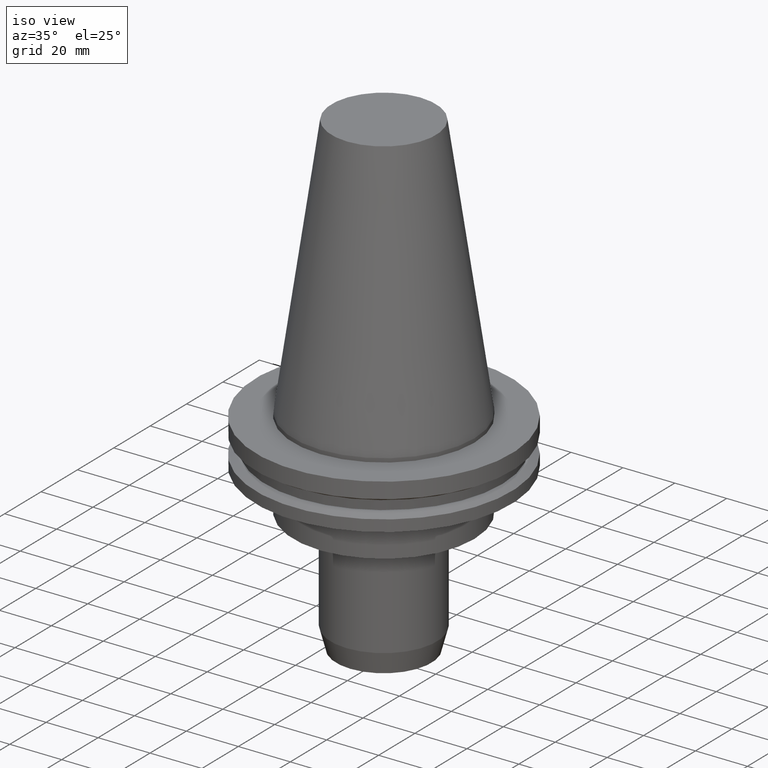
[diagram: clean part render]
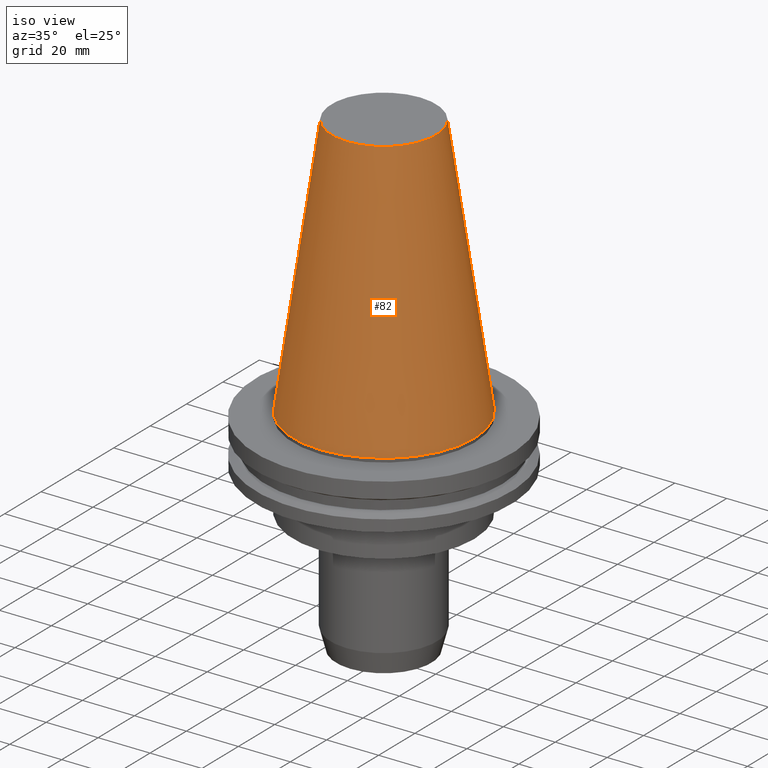
[diagram: tour spotlight — one face highlighted and labeled with its STEP entity id]
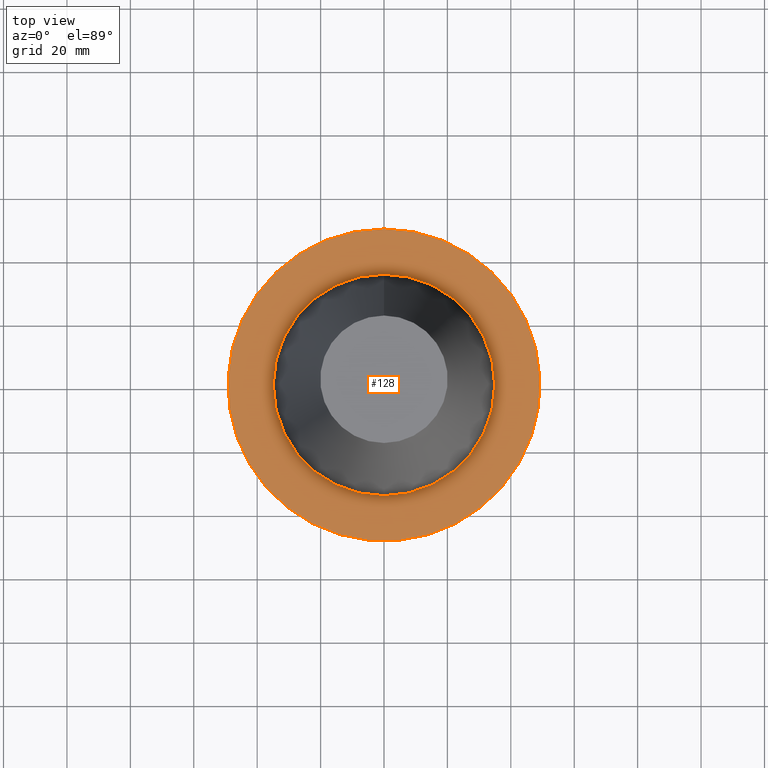
[diagram: tour spotlight — one face highlighted and labeled with its STEP entity id]
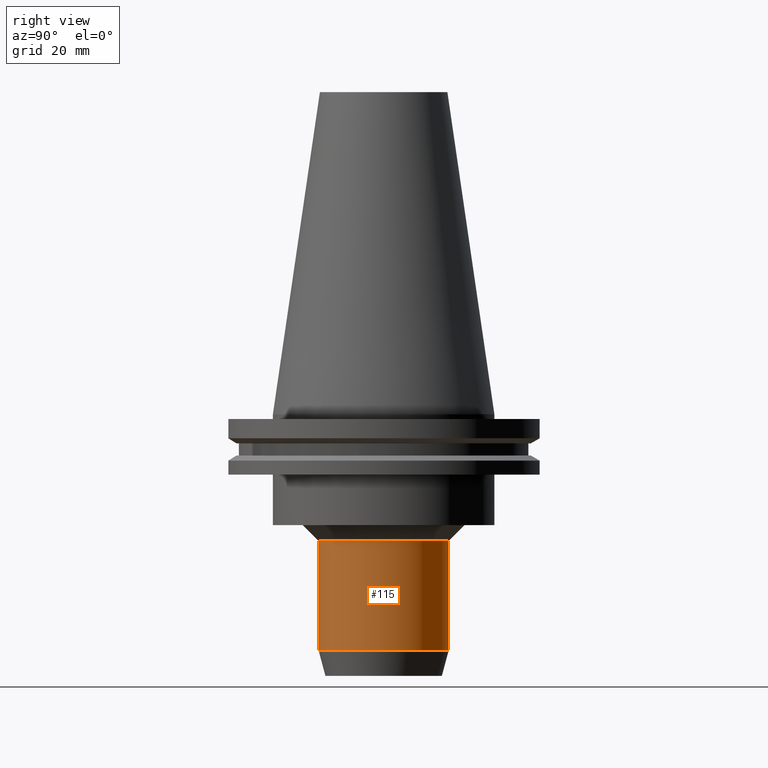
[diagram: tour spotlight — one face highlighted and labeled with its STEP entity id]
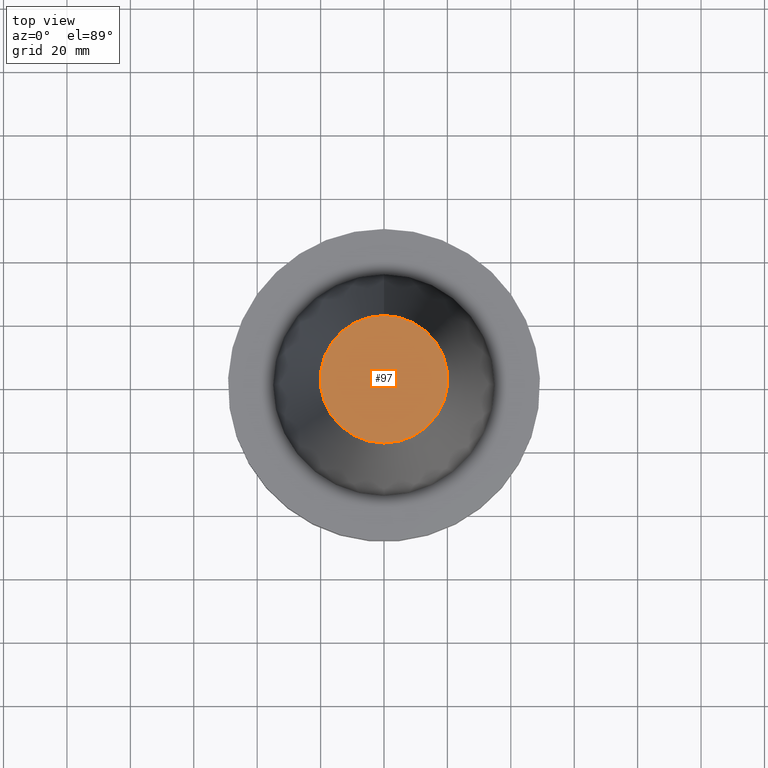
[diagram: tour spotlight — one face highlighted and labeled with its STEP entity id]
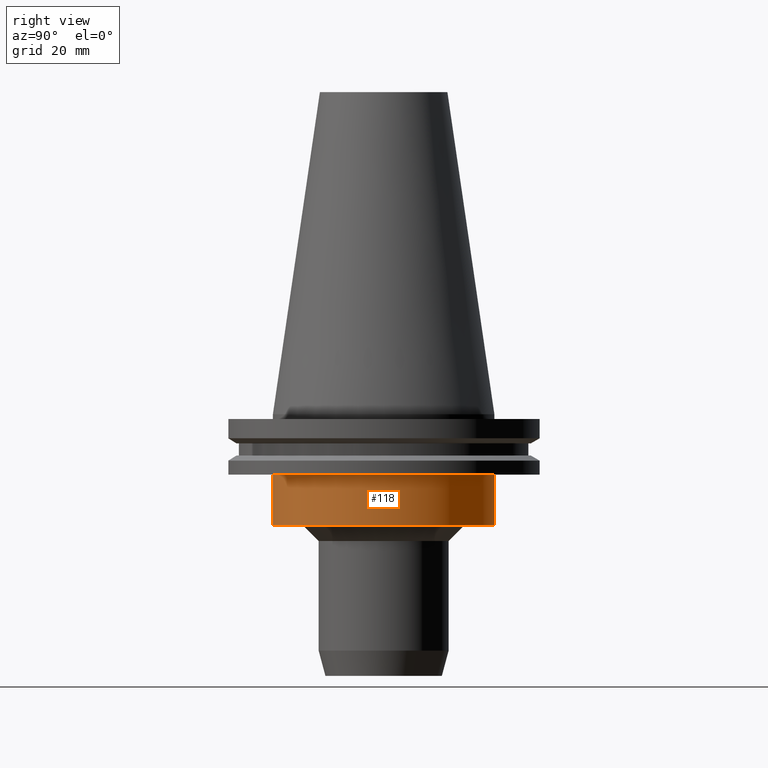
[diagram: tour spotlight — one face highlighted and labeled with its STEP entity id]
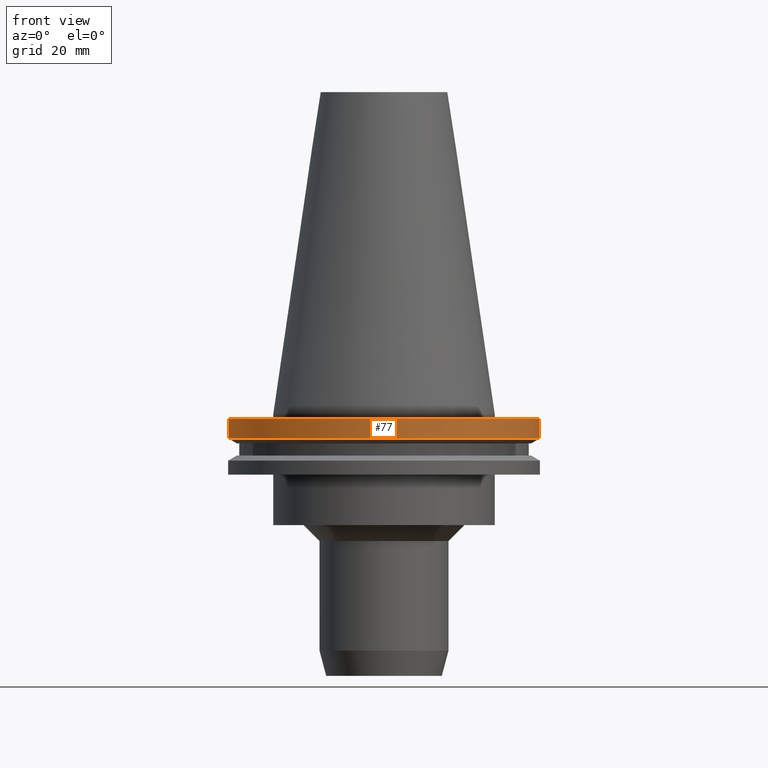
[diagram: tour spotlight — one face highlighted and labeled with its STEP entity id]
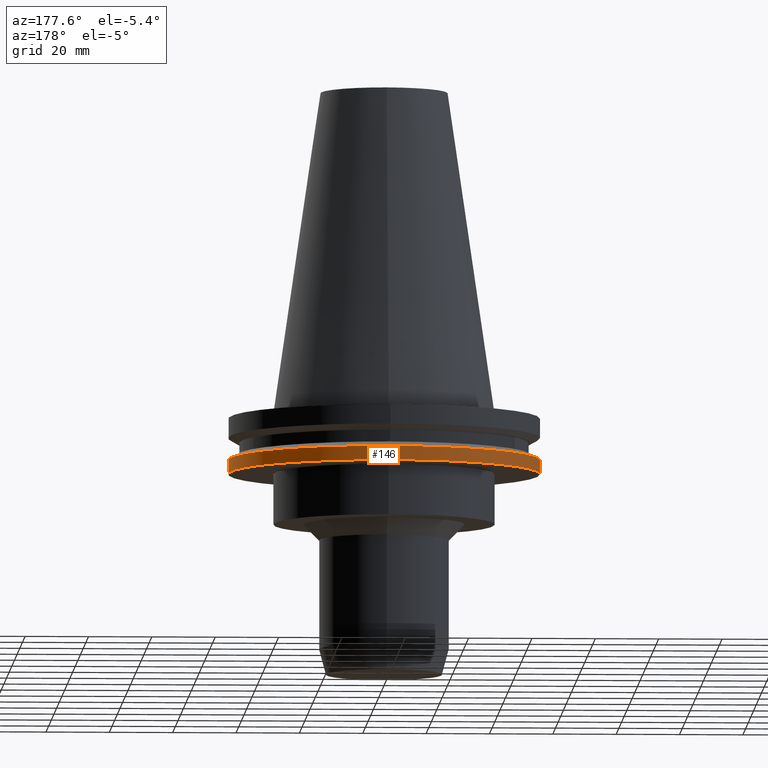
[diagram: tour spotlight — one face highlighted and labeled with its STEP entity id]
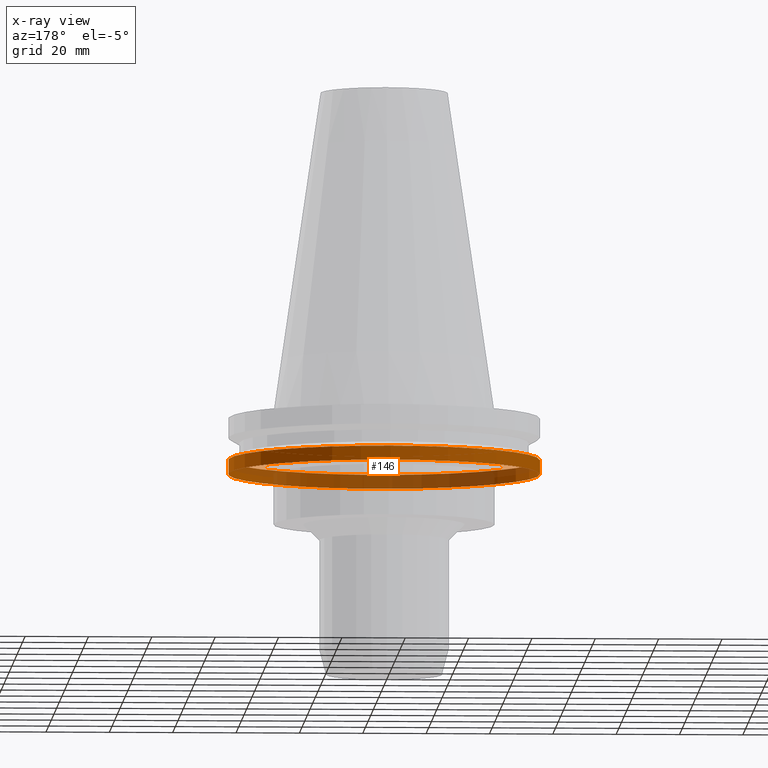
[diagram: x-ray of the same camera — body ghosted, this tour face saturated]
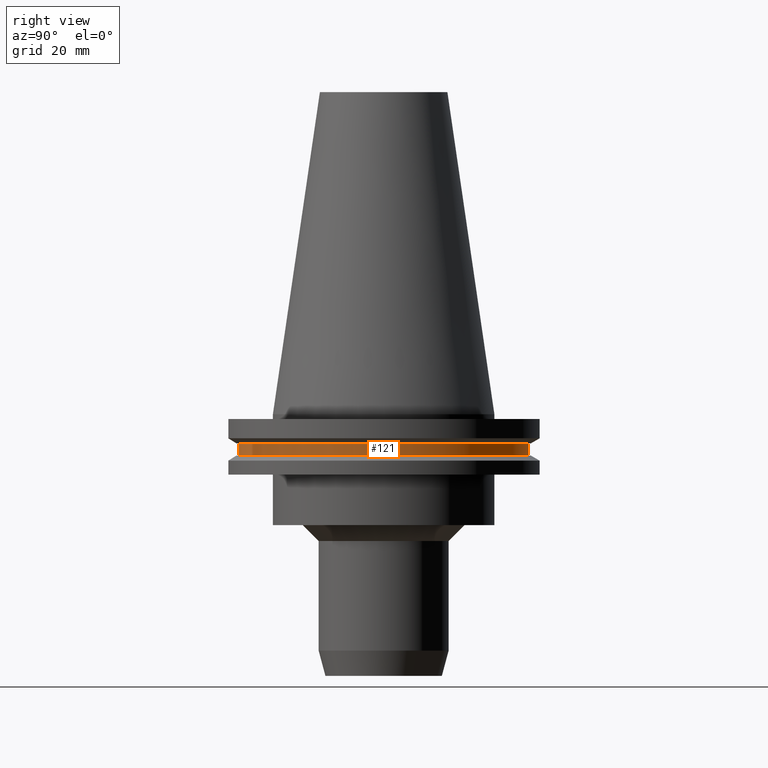
[diagram: tour spotlight — one face highlighted and labeled with its STEP entity id]
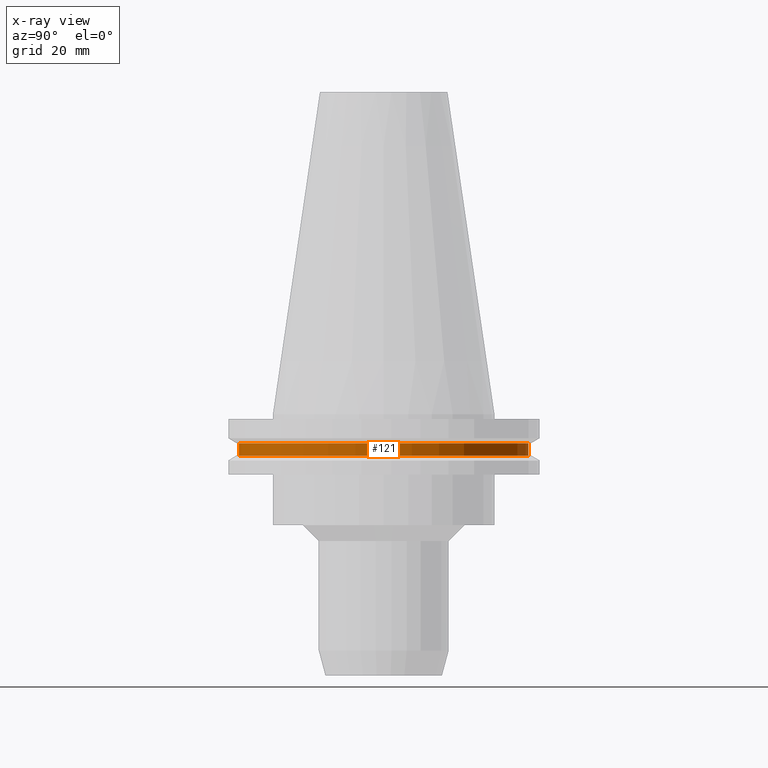
[diagram: x-ray of the same camera — body ghosted, this tour face saturated]
A machine part: a face-by-face anatomy tour. The part has 18 B-rep faces; the first image is the clean iso view, then the 8 largest visible faces are spotlighted one at a time (largest first), each with its STEP entity span.

Face 1 — iso view, entity #82. In plain terms, the highlighted conical surface has half-angle 8.297 deg.
Definition (entity closure, byte-faithful):
#65=EDGE_CURVE('Unnamed[1]',#175,#175,#176,.T.);
#79=EDGE_CURVE('Unnamed[1]',#196,#196,#197,.T.);
#82=ADVANCED_FACE('Unnamed[1]',(#200,#201),#202,.T.);
#175=VERTEX_POINT('',#326);
#176=CIRCLE('',#327,34.925);
#196=VERTEX_POINT('',#353);
#197=CIRCLE('',#354,20.1083333333333);
#200=FACE_BOUND('',#358,.T.);
#201=FACE_BOUND('',#359,.T.);
#202=CONICAL_SURFACE('',#360,27.5166666666666,0.144812498238938);
#326=CARTESIAN_POINT('',(4.82986938111671E-029,34.925,-7.9153078510529E-013));
#327=AXIS2_PLACEMENT_3D('',#501,#502,#503);
#353=CARTESIAN_POINT('',(-6.22120573966855E-015,20.1083333333332,101.6));
#354=AXIS2_PLACEMENT_3D('',#524,#525,#526);
#358=EDGE_LOOP('',(#528));
#359=EDGE_LOOP('',(#529));
#360=AXIS2_PLACEMENT_3D('',#530,#531,#532);
#501=CARTESIAN_POINT('',(4.95993415593426E-029,6.40020863429802E-015,-8.10018718766514E-013));
#502=DIRECTION('',(6.12323399573677E-017,7.22462196173144E-016,-1.0));
#503=DIRECTION('',(-4.90652035331952E-032,1.0,7.22462196173144E-016));
#524=CARTESIAN_POINT('',(-6.22120573966855E-015,-6.70019504968894E-014,101.6));
#525=DIRECTION('',(6.12323399573677E-017,7.22462196173083E-016,-1.0));
#526=DIRECTION('',(-4.90652035331843E-032,1.0,7.22462196173083E-016));
#528=ORIENTED_EDGE('',*,*,#65,.F.);
#529=ORIENTED_EDGE('',*,*,#79,.T.);
#530=CARTESIAN_POINT('',(-3.11060286983425E-015,-3.03008709312957E-014,50.7999999999996));
#531=DIRECTION('',(6.12323399573677E-017,7.22462196173063E-016,-1.0));
#532=DIRECTION('',(-4.90652035331879E-032,1.0,7.22462196173063E-016));

Face 2 — top view, entity #128. In plain terms, the highlighted planar face has unit normal (-0, -0, 1).
Definition (entity closure, byte-faithful):
#69=EDGE_CURVE('Unnamed[1]',#181,#181,#182,.T.);
#90=EDGE_CURVE('Unnamed[1]',#214,#214,#215,.T.);
#128=ADVANCED_FACE('Unnamed[1]',(#271,#272),#273,.T.);
#181=VERTEX_POINT('',#334);
#182=CIRCLE('',#335,34.925);
#214=VERTEX_POINT('',#375);
#215=CIRCLE('',#376,49.2124999999999);
#271=FACE_OUTER_BOUND('',#446,.T.);
#272=FACE_BOUND('',#447,.T.);
#273=PLANE('',#448);
#334=CARTESIAN_POINT('',(9.18485099360511E-017,34.925,-1.5));
#335=AXIS2_PLACEMENT_3D('',#507,#508,#509);
#375=CARTESIAN_POINT('',(9.18485099360509E-017,49.2124999999999,-1.49999999999999));
#376=AXIS2_PLACEMENT_3D('',#545,#546,#547);
#446=EDGE_LOOP('',(#606));
#447=EDGE_LOOP('',(#607));
#448=AXIS2_PLACEMENT_3D('',#608,#609,#610);
#507=CARTESIAN_POINT('',(9.18485099360524E-017,7.48390192855709E-015,-1.50000000000001));
#508=DIRECTION('',(6.12323399573677E-017,7.22462196173145E-016,-1.0));
#509=DIRECTION('',(-4.90652035331953E-032,1.0,7.22462196173145E-016));
#545=CARTESIAN_POINT('',(9.18485099360532E-017,7.4839019285571E-015,-1.50000000000003));
#546=DIRECTION('',(6.12323399573677E-017,7.22462196173164E-016,-1.0));
#547=DIRECTION('',(-4.90652035331884E-032,1.0,7.22462196173164E-016));
#606=ORIENTED_EDGE('',*,*,#90,.F.);
#607=ORIENTED_EDGE('',*,*,#69,.T.);
#608=CARTESIAN_POINT('',(9.1848509936051E-017,42.0687499999999,-1.49999999999999));
#609=DIRECTION('',(-6.12323399573677E-017,-1.22464679914735E-016,1.0));
#610=DIRECTION('',(1.23259516440783E-032,-1.0,-1.22464679914735E-016));

Face 3 — right view, entity #115. In plain terms, the highlighted cylindrical surface (bore or boss wall) has radius 20.5 mm, axis along (0, 0, -1).
Definition (entity closure, byte-faithful):
#109=EDGE_CURVE('Unnamed[1]',#243,#243,#244,.T.);
#115=ADVANCED_FACE('Unnamed[1]',(#250,#251),#252,.T.);
#130=EDGE_CURVE('Unnamed[1]',#275,#275,#276,.T.);
#243=VERTEX_POINT('',#412);
#244=CIRCLE('',#413,20.5000000000002);
#250=FACE_BOUND('',#420,.T.);
#251=FACE_BOUND('',#421,.T.);
#252=CYLINDRICAL_SURFACE('',#422,20.4999999999997);
#275=VERTEX_POINT('',#451);
#276=CIRCLE('',#452,20.4999999999992);
#412=CARTESIAN_POINT('',(4.56487094321621E-015,20.5000000000003,-74.5499999901106));
#413=AXIS2_PLACEMENT_3D('',#577,#578,#579);
#420=EDGE_LOOP('',(#582));
#421=EDGE_LOOP('',(#583));
#422=AXIS2_PLACEMENT_3D('',#584,#585,#586);
#451=CARTESIAN_POINT('',(2.44929359829474E-015,20.4999999999993,-40.0000000000006));
#452=AXIS2_PLACEMENT_3D('',#611,#612,#613);
#577=CARTESIAN_POINT('',(4.56487094321621E-015,6.02597653518573E-014,-74.5499999901106));
#578=DIRECTION('',(6.12323399573677E-017,7.22462196173134E-016,-1.0));
#579=DIRECTION('',(-4.90652035331935E-032,1.0,7.22462196173134E-016));
#582=ORIENTED_EDGE('',*,*,#109,.F.);
#583=ORIENTED_EDGE('',*,*,#130,.T.);
#584=CARTESIAN_POINT('',(3.50708227075548E-015,4.77792309165396E-014,-57.2749999950556));
#585=DIRECTION('',(6.12323399573677E-017,7.22462196173072E-016,-1.0));
#586=DIRECTION('',(-4.9065203533186E-032,1.0,7.22462196173072E-016));
#611=CARTESIAN_POINT('',(2.44929359829474E-015,3.52986964812218E-014,-40.0000000000006));
#612=DIRECTION('',(6.12323399573677E-017,7.2246219617309E-016,-1.0));
#613=DIRECTION('',(-4.90652035331871E-032,1.0,7.2246219617309E-016));

Face 4 — top view, entity #97. In plain terms, the highlighted planar face has unit normal (-0, -0, 1).
Definition (entity closure, byte-faithful):
#79=EDGE_CURVE('Unnamed[1]',#196,#196,#197,.T.);
#97=ADVANCED_FACE('Unnamed[1]',(#224),#225,.T.);
#196=VERTEX_POINT('',#353);
#197=CIRCLE('',#354,20.1083333333333);
#224=FACE_OUTER_BOUND('',#388,.T.);
#225=PLANE('',#389);
#353=CARTESIAN_POINT('',(-6.22120573966855E-015,20.1083333333332,101.6));
#354=AXIS2_PLACEMENT_3D('',#524,#525,#526);
#388=EDGE_LOOP('',(#555));
#389=AXIS2_PLACEMENT_3D('',#556,#557,#558);
#524=CARTESIAN_POINT('',(-6.22120573966855E-015,-6.70019504968894E-014,101.6));
#525=DIRECTION('',(6.12323399573677E-017,7.22462196173083E-016,-1.0));
#526=DIRECTION('',(-4.90652035331843E-032,1.0,7.22462196173083E-016));
#555=ORIENTED_EDGE('',*,*,#79,.F.);
#556=CARTESIAN_POINT('',(-6.22120573966855E-015,10.0541666666666,101.6));
#557=DIRECTION('',(-6.12323399573677E-017,-1.22464679914735E-016,1.0));
#558=DIRECTION('',(1.23259516440783E-032,-1.0,-1.22464679914735E-016));

Face 5 — right view, entity #118. In plain terms, the highlighted cylindrical surface (bore or boss wall) has radius 34.925 mm, axis along (0, 0, -1).
Definition (entity closure, byte-faithful):
#118=ADVANCED_FACE('Unnamed[1]',(#255,#256),#257,.T.);
#123=EDGE_CURVE('Unnamed[1]',#264,#264,#265,.T.);
#132=EDGE_CURVE('Unnamed[1]',#278,#278,#279,.T.);
#255=FACE_BOUND('',#426,.T.);
#256=FACE_BOUND('',#427,.T.);
#257=CYLINDRICAL_SURFACE('',#428,34.925);
#264=VERTEX_POINT('',#437);
#265=CIRCLE('',#438,34.925);
#278=VERTEX_POINT('',#455);
#279=CIRCLE('',#456,34.925);
#426=EDGE_LOOP('',(#588));
#427=EDGE_LOOP('',(#589));
#428=AXIS2_PLACEMENT_3D('',#590,#591,#592);
#437=CARTESIAN_POINT('',(2.14313189850787E-015,34.925,-35.0000000000001));
#438=AXIS2_PLACEMENT_3D('',#599,#600,#601);
#455=CARTESIAN_POINT('',(1.16647607618786E-015,34.925,-19.0500000000001));
#456=AXIS2_PLACEMENT_3D('',#614,#615,#616);
#588=ORIENTED_EDGE('',*,*,#123,.F.);
#589=ORIENTED_EDGE('',*,*,#132,.T.);
#590=CARTESIAN_POINT('',(1.65480398734787E-015,2.59247494858755E-014,-27.0250000000001));
#591=DIRECTION('',(6.12323399573677E-017,7.22462196173145E-016,-1.0));
#592=DIRECTION('',(-4.90652035331901E-032,1.0,7.22462196173145E-016));
#599=CARTESIAN_POINT('',(2.14313189850787E-015,3.1686385500356E-014,-35.0000000000001));
#600=DIRECTION('',(6.12323399573677E-017,7.22462196173145E-016,-1.0));
#601=DIRECTION('',(-4.90652035331901E-032,1.0,7.22462196173145E-016));
#614=CARTESIAN_POINT('',(1.16647607618786E-015,2.0163113471395E-014,-19.0500000000001));
#615=DIRECTION('',(6.12323399573677E-017,7.22462196173145E-016,-1.0));
#616=DIRECTION('',(-4.90652035331901E-032,1.0,7.22462196173145E-016));

Face 6 — front view, entity #77. In plain terms, the highlighted cylindrical surface (bore or boss wall) has radius 49.2125 mm, axis along (0, 0, -1).
Definition (entity closure, byte-faithful):
#77=ADVANCED_FACE('Unnamed[1]',(#192,#193),#194,.T.);
#90=EDGE_CURVE('Unnamed[1]',#214,#214,#215,.T.);
#102=EDGE_CURVE('Unnamed[1]',#232,#232,#233,.T.);
#192=FACE_BOUND('',#348,.T.);
#193=FACE_BOUND('',#349,.T.);
#194=CYLINDRICAL_SURFACE('',#350,49.2125);
#214=VERTEX_POINT('',#375);
#215=CIRCLE('',#376,49.2124999999999);
#232=VERTEX_POINT('',#398);
#233=CIRCLE('',#399,49.2125);
#348=EDGE_LOOP('',(#519));
#349=EDGE_LOOP('',(#520));
#350=AXIS2_PLACEMENT_3D('',#521,#522,#523);
#375=CARTESIAN_POINT('',(9.18485099360509E-017,49.2124999999999,-1.49999999999999));
#376=AXIS2_PLACEMENT_3D('',#545,#546,#547);
#398=CARTESIAN_POINT('',(4.65059621976208E-016,49.2125,-7.59500000000002));
#399=AXIS2_PLACEMENT_3D('',#565,#566,#567);
#519=ORIENTED_EDGE('',*,*,#102,.F.);
#520=ORIENTED_EDGE('',*,*,#90,.T.);
#521=CARTESIAN_POINT('',(2.78454065956132E-016,9.68560547139463E-015,-4.54750000000004));
#522=DIRECTION('',(6.12323399573677E-017,7.22462196173163E-016,-1.0));
#523=DIRECTION('',(-4.90652035331883E-032,1.0,7.22462196173163E-016));
#545=CARTESIAN_POINT('',(9.18485099360532E-017,7.4839019285571E-015,-1.50000000000003));
#546=DIRECTION('',(6.12323399573677E-017,7.22462196173164E-016,-1.0));
#547=DIRECTION('',(-4.90652035331884E-032,1.0,7.22462196173164E-016));
#565=CARTESIAN_POINT('',(4.65059621976211E-016,1.18873090142322E-014,-7.59500000000006));
#566=DIRECTION('',(6.12323399573677E-017,7.22462196173162E-016,-1.0));
#567=DIRECTION('',(-4.90652035331882E-032,1.0,7.22462196173162E-016));

Face 7 — auxiliary view, entity #146. An x-ray twin of the same camera follows (body ghosted, this face saturated) — the face is partly hidden behind the body. In plain terms, the highlighted cylindrical surface (bore or boss wall) has radius 49.2125 mm, axis along (0, 0, -1).
Definition (entity closure, byte-faithful):
#71=EDGE_CURVE('Unnamed[1]',#184,#184,#185,.T.);
#107=EDGE_CURVE('Unnamed[1]',#240,#240,#241,.T.);
#146=ADVANCED_FACE('Unnamed[1]',(#300,#301),#302,.T.);
#184=VERTEX_POINT('',#338);
#185=CIRCLE('',#339,49.2124999999999);
#240=VERTEX_POINT('',#408);
#241=CIRCLE('',#409,49.2124999999999);
#300=FACE_BOUND('',#482,.T.);
#301=FACE_BOUND('',#483,.T.);
#302=CYLINDRICAL_SURFACE('',#484,49.2124999999999);
#338=CARTESIAN_POINT('',(1.16647607618786E-015,49.2124999999999,-19.0500000000001));
#339=AXIS2_PLACEMENT_3D('',#510,#511,#512);
#408=CARTESIAN_POINT('',(8.96747618675648E-016,49.2124999999999,-14.645));
#409=AXIS2_PLACEMENT_3D('',#574,#575,#576);
#482=EDGE_LOOP('',(#639));
#483=EDGE_LOOP('',(#640));
#484=AXIS2_PLACEMENT_3D('',#641,#642,#643);
#510=CARTESIAN_POINT('',(1.16647607618786E-015,2.0163113471395E-014,-19.0500000000001));
#511=DIRECTION('',(6.12323399573677E-017,7.22462196173164E-016,-1.0));
#512=DIRECTION('',(-4.90652035331884E-032,1.0,7.22462196173164E-016));
#574=CARTESIAN_POINT('',(8.9674761867565E-016,1.69806674972525E-014,-14.645));
#575=DIRECTION('',(6.12323399573677E-017,7.22462196173164E-016,-1.0));
#576=DIRECTION('',(-4.90652035331884E-032,1.0,7.22462196173164E-016));
#639=ORIENTED_EDGE('',*,*,#71,.F.);
#640=ORIENTED_EDGE('',*,*,#107,.T.);
#641=CARTESIAN_POINT('',(1.03161184743175E-015,1.85718904843238E-014,-16.8475000000001));
#642=DIRECTION('',(6.12323399573677E-017,7.22462196173164E-016,-1.0));
#643=DIRECTION('',(-4.90652035331884E-032,1.0,7.22462196173164E-016));

Face 8 — right view, entity #121. An x-ray twin of the same camera follows (body ghosted, this face saturated) — the face is partly hidden behind the body. In plain terms, the highlighted cylindrical surface (bore or boss wall) has radius 45.645 mm, axis along (0, 0, -1).
Definition (entity closure, byte-faithful):
#63=EDGE_CURVE('Unnamed[1]',#172,#172,#173,.T.);
#67=EDGE_CURVE('Unnamed[1]',#178,#178,#179,.T.);
#121=ADVANCED_FACE('Unnamed[1]',(#260,#261),#262,.T.);
#172=VERTEX_POINT('',#322);
#173=CIRCLE('',#323,45.6449999999999);
#178=VERTEX_POINT('',#330);
#179=CIRCLE('',#331,45.6449999999999);
#260=FACE_BOUND('',#432,.T.);
#261=FACE_BOUND('',#433,.T.);
#262=CYLINDRICAL_SURFACE('',#434,45.6449999999999);
#322=CARTESIAN_POINT('',(5.63337527607778E-016,45.6449999999999,-9.19999999999993));
#323=AXIS2_PLACEMENT_3D('',#498,#499,#500);
#330=CARTESIAN_POINT('',(7.98469713044071E-016,45.6449999999999,-13.04));
#331=AXIS2_PLACEMENT_3D('',#504,#505,#506);
#432=EDGE_LOOP('',(#594));
#433=EDGE_LOOP('',(#595));
#434=AXIS2_PLACEMENT_3D('',#596,#597,#598);
#498=CARTESIAN_POINT('',(5.6333752760778E-016,1.30468608390899E-014,-9.19999999999996));
#499=DIRECTION('',(6.12323399573677E-017,7.22462196173127E-016,-1.0));
#500=DIRECTION('',(-4.90652035331836E-032,1.0,7.22462196173127E-016));
#504=CARTESIAN_POINT('',(7.98469713044074E-016,1.58211156723946E-014,-13.04));
#505=DIRECTION('',(6.12323399573677E-017,7.22462196173127E-016,-1.0));
#506=DIRECTION('',(-4.90652035331836E-032,1.0,7.22462196173127E-016));
#594=ORIENTED_EDGE('',*,*,#67,.F.);
#595=ORIENTED_EDGE('',*,*,#63,.T.);
#596=CARTESIAN_POINT('',(6.80903620325927E-016,1.44339882557423E-014,-11.12));
#597=DIRECTION('',(6.12323399573677E-017,7.22462196173127E-016,-1.0));
#598=DIRECTION('',(-4.90652035331836E-032,1.0,7.22462196173127E-016));